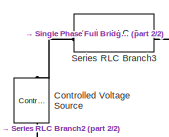
[diagram: root canvas - part 1/2, top left region]
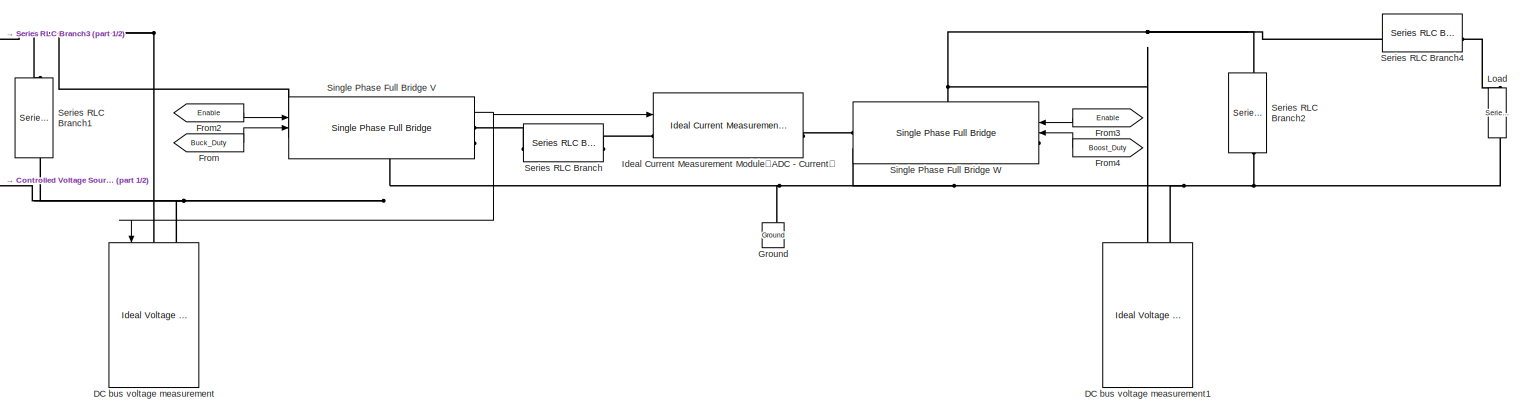
[diagram: root canvas - part 2/2, most of the canvas]
MODEL slx_9dcb18fa94f8
KIND model
CONFIG AbsTol = auto
CONFIG EnableMultiTasking = off
CONFIG FixedStep = auto
CONFIG MaxStep = auto
CONFIG MinStep = auto
CONFIG RelTol = 1e-3
CONFIG SampleTimeConstraint = Unconstrained
CONFIG SolverName = VariableStepAuto
CONFIG StartTime = 0.0
CONFIG StopTime = 10.0
BLOCK [Reference] Controlled Voltage Source  REF=spsControlledVoltageSourceLib/Controlled Voltage Source
  LibrarySourceBlock = sps_lib/Sources/Controlled Voltage Source
  SourceBlock = spsControlledVoltageSourceLib/Controlled Voltage Source
  SourceType = Controlled Voltage Source
BLOCK [Reference] DC bus voltage measurement  REF=peripheral_utilities/Ideal Voltage Measurement Module(ADC - Voltage)
  NameLocation = left
  SourceBlock = peripheral_utilities/Ideal Voltage Measurement Module(ADC - Voltage)
  SourceProductName = Virtual Peripheral Utilities
BLOCK [Reference] DC bus voltage measurement1  REF=peripheral_utilities/Ideal Voltage Measurement Module(ADC - Voltage)
  NameLocation = left
  SourceBlock = peripheral_utilities/Ideal Voltage Measurement Module(ADC - Voltage)
  SourceProductName = Virtual Peripheral Utilities
BLOCK [From] From
  GotoTag = Buck_Duty
BLOCK [From] From2
  GotoTag = Enable
BLOCK [From] From3
  GotoTag = Enable
  NameLocation = top
BLOCK [From] From4
  GotoTag = Boost_Duty
  NameLocation = top
BLOCK [Reference] Ground  REF=spsGroundLib/Ground
  LibrarySourceBlock = sps_lib/Utilities/Ground
  NameLocation = right
  SourceBlock = spsGroundLib/Ground
  SourceType = Ground
BLOCK [Reference] Ideal Current Measurement Module（ADC - Current）  REF=peripheral_utilities/Ideal Current Measurement Module（ADC - Current）
  SourceBlock = peripheral_utilities/Ideal Current Measurement Module（ADC - Current）
  SourceProductName = Virtual Peripheral Utilities
BLOCK [Reference] Load  REF=spsSeriesRLCBranchLib/Series RLC Branch
  LibrarySourceBlock = sps_lib/Passives/Series RLC Branch
  NameLocation = left
  SourceBlock = spsSeriesRLCBranchLib/Series RLC Branch
  SourceType = Series RLC Branch
BLOCK [Reference] Series RLC Branch  REF=spsSeriesRLCBranchLib/Series RLC Branch
  LibrarySourceBlock = sps_lib/Passives/Series RLC Branch
  SourceBlock = spsSeriesRLCBranchLib/Series RLC Branch
  SourceType = Series RLC Branch
BLOCK [Reference] Series RLC Branch1  REF=spsSeriesRLCBranchLib/Series RLC Branch
  LibrarySourceBlock = sps_lib/Passives/Series RLC Branch
  NameLocation = left
  SourceBlock = spsSeriesRLCBranchLib/Series RLC Branch
  SourceType = Series RLC Branch
BLOCK [Reference] Series RLC Branch2  REF=spsSeriesRLCBranchLib/Series RLC Branch
  LibrarySourceBlock = sps_lib/Passives/Series RLC Branch
  NameLocation = left
  SourceBlock = spsSeriesRLCBranchLib/Series RLC Branch
  SourceType = Series RLC Branch
BLOCK [Reference] Series RLC Branch3  REF=spsSeriesRLCBranchLib/Series RLC Branch
  LibrarySourceBlock = sps_lib/Passives/Series RLC Branch
  SourceBlock = spsSeriesRLCBranchLib/Series RLC Branch
  SourceType = Series RLC Branch
BLOCK [Reference] Series RLC Branch4  REF=spsSeriesRLCBranchLib/Series RLC Branch
  LibrarySourceBlock = sps_lib/Passives/Series RLC Branch
  SourceBlock = spsSeriesRLCBranchLib/Series RLC Branch
  SourceType = Series RLC Branch
BLOCK [Reference] Single Phase Full Bridge V  REF=peripheral_utilities/Single Phase Full Bridge
  SourceBlock = peripheral_utilities/Single Phase Full Bridge
  SourceProductName = Virtual Peripheral Utilities
BLOCK [Reference] Single Phase Full Bridge W  REF=peripheral_utilities/Single Phase Full Bridge
  SourceBlock = peripheral_utilities/Single Phase Full Bridge
  SourceProductName = Virtual Peripheral Utilities
LINE From2:1 -> Single Phase Full Bridge V:1
LINE From3:1 -> Single Phase Full Bridge W:1
LINE From4:1 -> Single Phase Full Bridge W:2
LINE From:1 -> Single Phase Full Bridge V:2
NET Single Phase Full Bridge V:1 -> DC bus voltage measurement:1, Ideal Current Measurement Module（ADC - Current）:1
PNET net1: Controlled Voltage Source:LConn1 -- DC bus voltage measurement1:LConn2 -- DC bus voltage measurement:LConn2 -- Ground:LConn1 -- Load:RConn1 -- Series RLC Branch1:RConn1 -- Series RLC Branch2:RConn1 -- Single Phase Full Bridge V:RConn2 -- Single Phase Full Bridge W:RConn2
PLINE Controlled Voltage Source:RConn1 -- Series RLC Branch3:LConn1
PNET net2: DC bus voltage measurement1:LConn1 -- Series RLC Branch2:LConn1 -- Series RLC Branch4:LConn1 -- Single Phase Full Bridge W:LConn1
PNET net3: DC bus voltage measurement:LConn1 -- Series RLC Branch1:LConn1 -- Series RLC Branch3:RConn1 -- Single Phase Full Bridge V:LConn1
PLINE Ideal Current Measurement Module（ADC - Current）:LConn1 -- Series RLC Branch:RConn1
PLINE Ideal Current Measurement Module（ADC - Current）:RConn1 -- Single Phase Full Bridge W:RConn1
PLINE Load:LConn1 -- Series RLC Branch4:RConn1
PLINE Series RLC Branch:LConn1 -- Single Phase Full Bridge V:RConn1
note: NET lines group one-source signal fan-out (src -> all destinations, sorted); 1:1 wires keep LINE; PNET lines group multi-terminal physical nets as a canonical sorted terminal list (undirected conserving connections); 2-terminal nets keep the pairwise PLINE form
